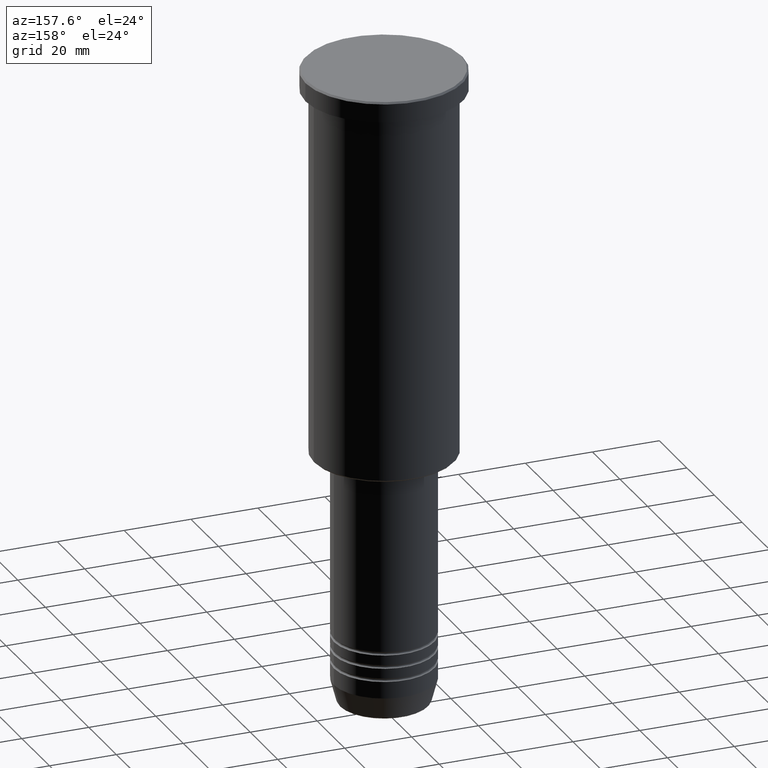
[diagram: clean part render]
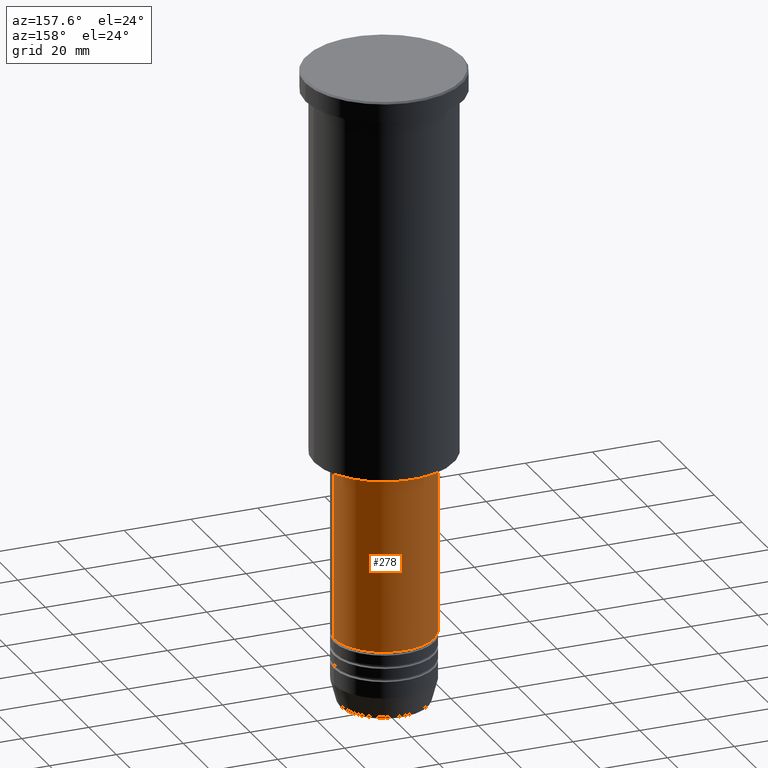
[diagram: same view with one face highlighted and labeled with its STEP entity id]
A machine part, auxiliary view. The second image highlights one B-rep face of the part: STEP entity #278.
In plain terms, the highlighted cylindrical surface (partial cylindrical patch) has radius 15 mm, axis along (-0, -0, 1).
Its self-contained STEP definition (entity closure, byte-faithful):
#40 = DIRECTION ( 'NONE',  ( -0.000000000000000000, -0.000000000000000000, 1.000000000000000000 ) ) ;
#74 = LINE ( 'NONE', #531, #393 ) ;
#106 = EDGE_CURVE ( 'NONE', #1008, #867, #1101, .T. ) ;
#182 = CARTESIAN_POINT ( 'NONE',  ( 15.00000000000000000, 0.000000000000000000, -169.9999999999999147 ) ) ;
#219 = ORIENTED_EDGE ( 'NONE', *, *, #833, .T. ) ;
#230 = EDGE_CURVE ( 'NONE', #944, #1008, #282, .T. ) ;
#261 = ORIENTED_EDGE ( 'NONE', *, *, #1090, .T. ) ;
#278 = ADVANCED_FACE ( 'NONE', ( #504 ), #976, .T. ) ;
#282 = LINE ( 'NONE', #747, #521 ) ;
#294 = CIRCLE ( 'NONE', #309, 15.00000000000000000 ) ;
#309 = AXIS2_PLACEMENT_3D ( 'NONE', #1121, #959, #759 ) ;
#345 = DIRECTION ( 'NONE',  ( -0.000000000000000000, -0.000000000000000000, 1.000000000000000000 ) ) ;
#393 = VECTOR ( 'NONE', #345, 1000.000000000000000 ) ;
#426 = VERTEX_POINT ( 'NONE', #470 ) ;
#470 = CARTESIAN_POINT ( 'NONE',  ( -15.00000000000000000, 1.836970198721029589E-15, -169.9999999999999147 ) ) ;
#504 = FACE_OUTER_BOUND ( 'NONE', #641, .T. ) ;
#521 = VECTOR ( 'NONE', #752, 1000.000000000000000 ) ;
#528 = ORIENTED_EDGE ( 'NONE', *, *, #106, .F. ) ;
#531 = CARTESIAN_POINT ( 'NONE',  ( -15.00000000000000000, 1.836970198721029589E-15, 0.000000000000000000 ) ) ;
#641 = EDGE_LOOP ( 'NONE', ( #261, #219, #528, #670 ) ) ;
#649 = CARTESIAN_POINT ( 'NONE',  ( 15.00000000000000000, 0.000000000000000000, -117.0000000000000426 ) ) ;
#670 = ORIENTED_EDGE ( 'NONE', *, *, #230, .F. ) ;
#672 = CARTESIAN_POINT ( 'NONE',  ( 0.000000000000000000, 0.000000000000000000, -117.0000000000000426 ) ) ;
#679 = CARTESIAN_POINT ( 'NONE',  ( 0.000000000000000000, 0.000000000000000000, 0.000000000000000000 ) ) ;
#747 = CARTESIAN_POINT ( 'NONE',  ( 15.00000000000000000, 0.000000000000000000, 0.000000000000000000 ) ) ;
#752 = DIRECTION ( 'NONE',  ( -0.000000000000000000, -0.000000000000000000, 1.000000000000000000 ) ) ;
#759 = DIRECTION ( 'NONE',  ( 1.000000000000000000, 0.000000000000000000, 0.000000000000000000 ) ) ;
#833 = EDGE_CURVE ( 'NONE', #426, #867, #74, .T. ) ;
#854 = DIRECTION ( 'NONE',  ( -0.000000000000000000, -0.000000000000000000, 1.000000000000000000 ) ) ;
#867 = VERTEX_POINT ( 'NONE', #1174 ) ;
#877 = DIRECTION ( 'NONE',  ( 1.000000000000000000, 0.000000000000000000, 0.000000000000000000 ) ) ;
#885 = AXIS2_PLACEMENT_3D ( 'NONE', #672, #854, #1032 ) ;
#944 = VERTEX_POINT ( 'NONE', #182 ) ;
#959 = DIRECTION ( 'NONE',  ( -0.000000000000000000, -0.000000000000000000, 1.000000000000000000 ) ) ;
#976 = CYLINDRICAL_SURFACE ( 'NONE', #1118, 15.00000000000000000 ) ;
#1008 = VERTEX_POINT ( 'NONE', #649 ) ;
#1032 = DIRECTION ( 'NONE',  ( 1.000000000000000000, 0.000000000000000000, 0.000000000000000000 ) ) ;
#1090 = EDGE_CURVE ( 'NONE', #944, #426, #294, .T. ) ;
#1101 = CIRCLE ( 'NONE', #885, 15.00000000000000000 ) ;
#1118 = AXIS2_PLACEMENT_3D ( 'NONE', #679, #40, #877 ) ;
#1121 = CARTESIAN_POINT ( 'NONE',  ( 0.000000000000000000, 0.000000000000000000, -169.9999999999999147 ) ) ;
#1174 = CARTESIAN_POINT ( 'NONE',  ( -15.00000000000000000, 1.836970198721029589E-15, -117.0000000000000426 ) ) ;